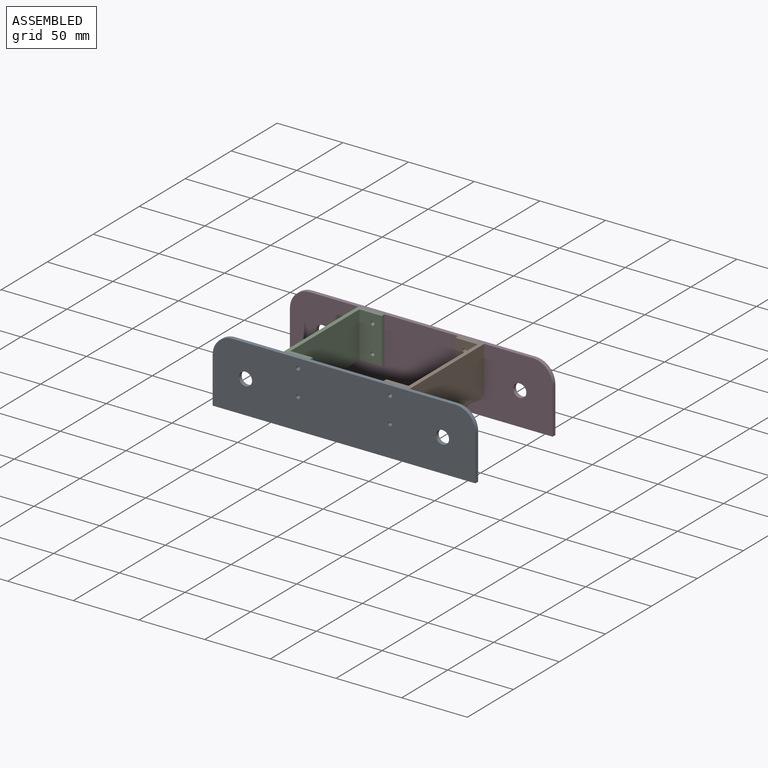
[diagram: assembled view]
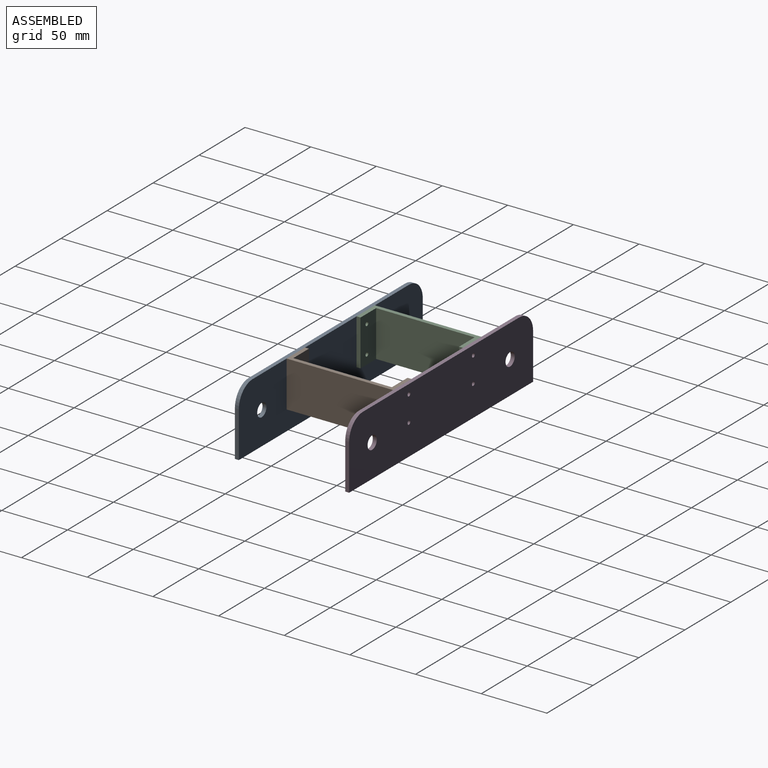
[diagram: assembled view, second angle]
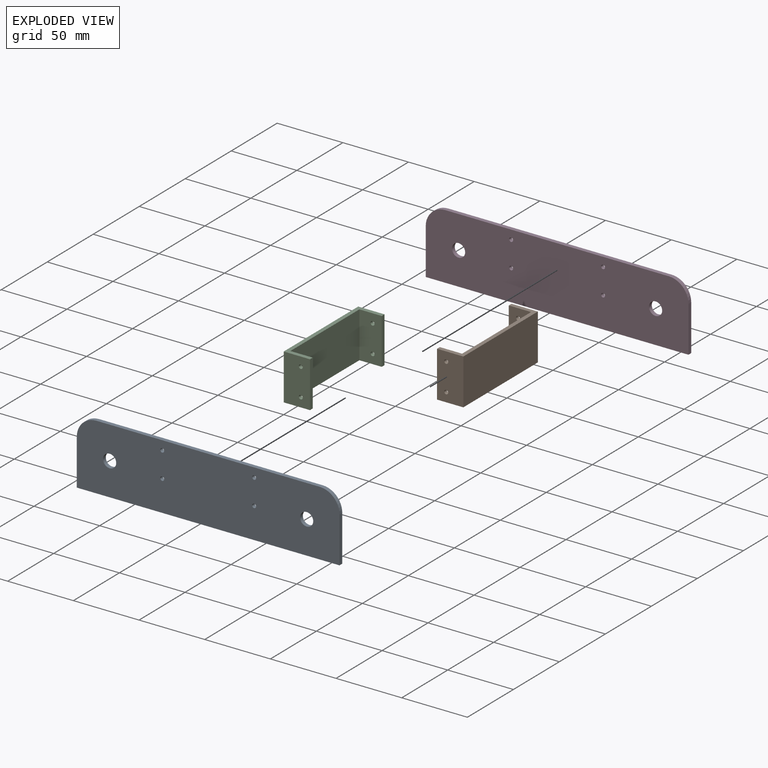
[diagram: exploded view]
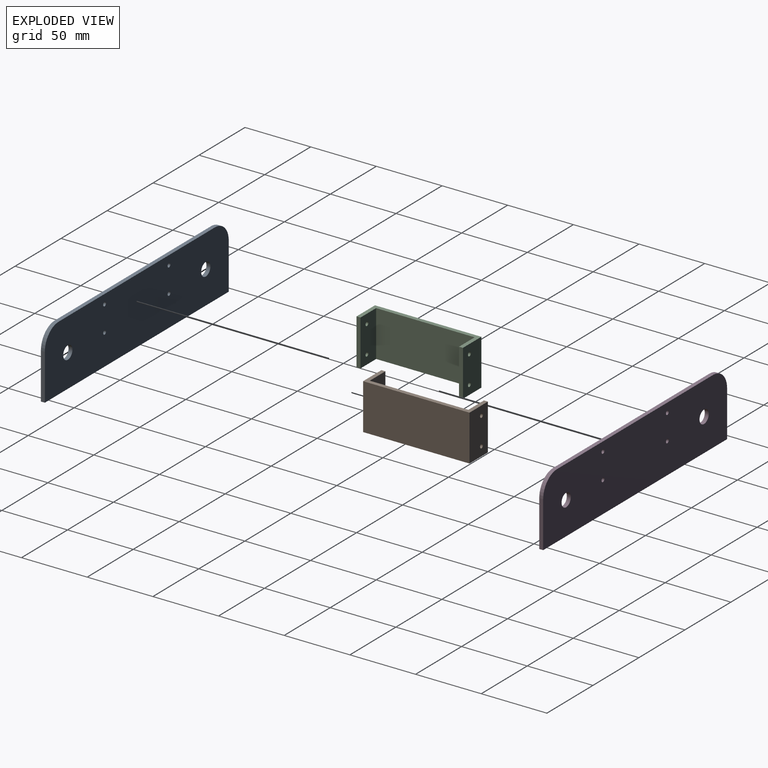
[diagram: exploded view, second angle]
ASSEMBLY  parts=4 mates=3
PART A: 14 faces, bbox 200x3x50 mm
  f0: plane 35x3mm, normal (1,0,0), area 105mm2, adj f3,f4,f5,f6
  f1: plane 170x3mm, normal (0,0,1), area 510mm2, adj f4,f5,f6,f7
  f2: plane 35x3mm, normal (-1,0,0), area 105mm2, adj f3,f4,f5,f7
  f3: plane 200x3mm, normal (0,0,-1), area 600mm2, adj f0,f2,f4,f5
  f4: plane 200x50mm, normal (0,-1,0), area 9718.1mm2, adj f0,f1,f2,f3,f6,f7,f8,f9
  f5: plane 200x50mm, normal (0,1,0), area 9718.1mm2, adj f0,f1,f2,f3,f6,f7,f8,f9
  f6: cylinder r=15mm len=15mm, axis (0,-1,0), area 70.7mm2, adj f0,f1,f4,f5
  f7: cylinder r=15mm len=15mm, axis (0,1,0), area 70.7mm2, adj f1,f2,f4,f5
  f8: cylinder r=1.5mm len=3mm, axis (0,-1,0), area 28.3mm2, adj f4,f5
  f9: cylinder r=1.5mm len=3mm, axis (0,-1,0), area 28.3mm2, adj f4,f5
  f10: cylinder r=1.5mm len=3mm, axis (0,-1,0), area 28.3mm2, adj f4,f5
  f11: cylinder r=1.5mm len=3mm, axis (0,-1,0), area 28.3mm2, adj f4,f5
  f12: cylinder r=5mm len=10mm, axis (0,-1,0), area 94.2mm2, adj f4,f5
  f13: cylinder r=5mm len=10mm, axis (0,-1,0), area 94.2mm2, adj f4,f5
PART B: 14 faces, bbox 20x81x35 mm
  f0: plane 81x35mm, normal (1,0,0), area 2835mm2, adj f1,f3,f6,f8
  f1: plane 81x20mm, normal (0,0,1), area 345mm2, adj f0,f2,f4,f5,f6,f7,f8,f9
  f2: plane 75x35mm, normal (-1,0,0), area 2625mm2, adj f1,f3,f4,f9
  f3: plane 81x20mm, normal (0,0,-1), area 345mm2, adj f0,f2,f4,f5,f6,f7,f8,f9
  f4: plane 35x17mm, normal (0,1,0), area 580.9mm2, adj f1,f2,f3,f5,f12,f13
  f5: plane 35x3mm, normal (-1,0,0), area 105mm2, adj f1,f3,f4,f6
  f6: plane 35x20mm, normal (0,-1,0), area 685.9mm2, adj f0,f1,f3,f5,f12,f13
  f7: plane 35x3mm, normal (-1,0,0), area 105mm2, adj f1,f3,f8,f9
  f8: plane 35x20mm, normal (0,1,0), area 685.9mm2, adj f0,f1,f3,f7,f10,f11
  f9: plane 35x17mm, normal (0,-1,0), area 580.9mm2, adj f1,f2,f3,f7,f10,f11
  f10: cylinder r=1.5mm len=3mm, axis (0,-1,0), area 28.3mm2, adj f8,f9
  f11: cylinder r=1.5mm len=3mm, axis (0,-1,0), area 28.3mm2, adj f8,f9
  f12: cylinder r=1.5mm len=3mm, axis (0,-1,0), area 28.3mm2, adj f4,f6
  f13: cylinder r=1.5mm len=3mm, axis (0,-1,0), area 28.3mm2, adj f4,f6
PART C: same geometry as B
PART D: same geometry as A
PLACE A rot(axis=(1,0,0),0deg) t=(10.26,-67.39,20.37)mm
PLACE B t=(56.76,10.61,27.87)mm
PLACE C rot(axis=(0,1,0),180deg) t=(-36.24,10.61,27.87)mm
PLACE D t=(10.26,16.61,20.37)mm
MATE fastened A.f8 <-> C.f10  axis (0,1,0) through (-24.74,-67.39,38.37)mm
MATE fastened B.f11 <-> D.f10  axis (0,1,0) through (45.26,13.61,38.37)mm
MATE fastened C.f10 <-> D.f8  axis (0,1,0) through (-24.74,13.61,38.37)mm
